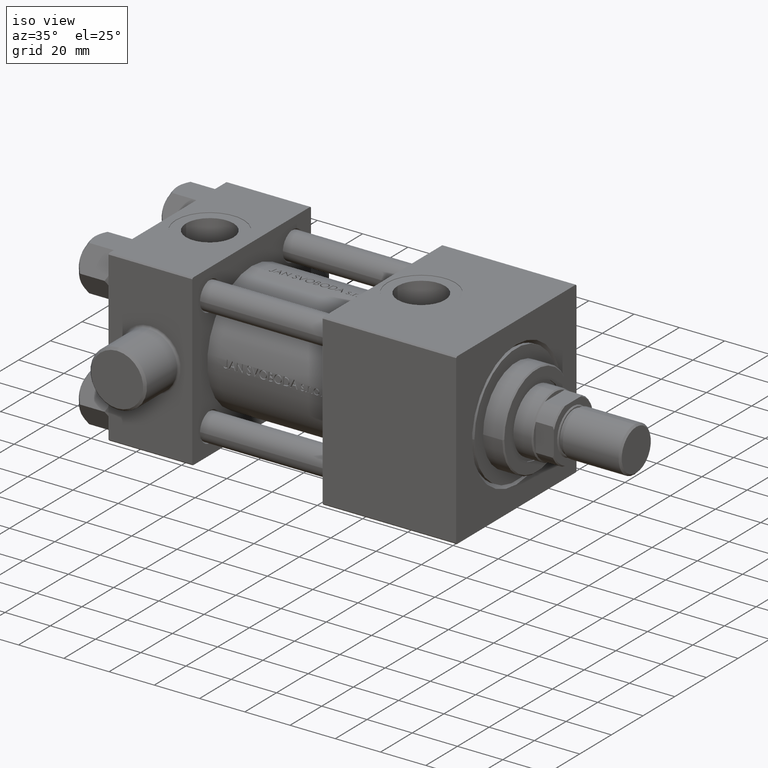
[diagram: clean part render]
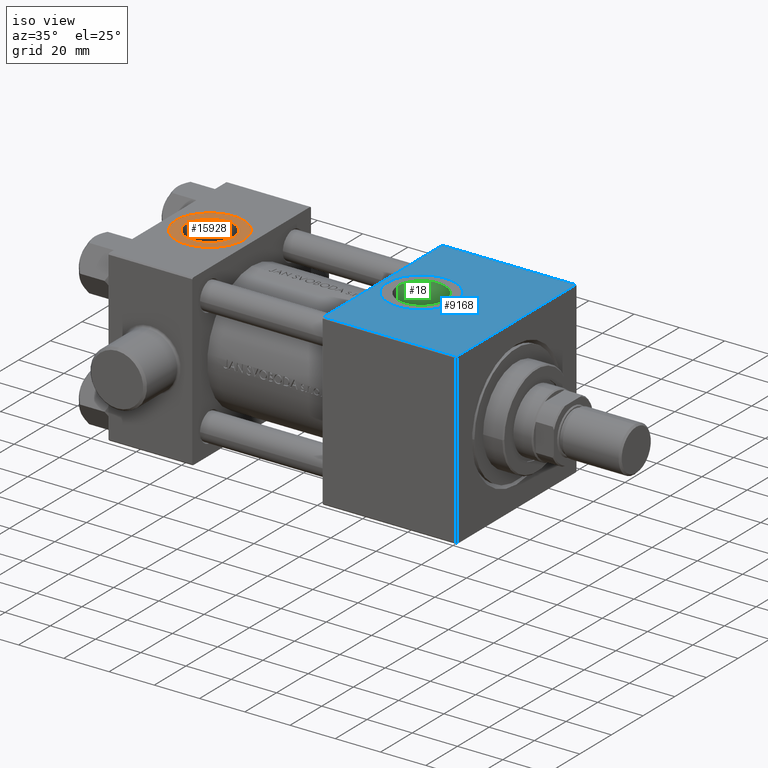
[diagram: same view with three faces highlighted in distinct colors, each labeled with its STEP entity id]
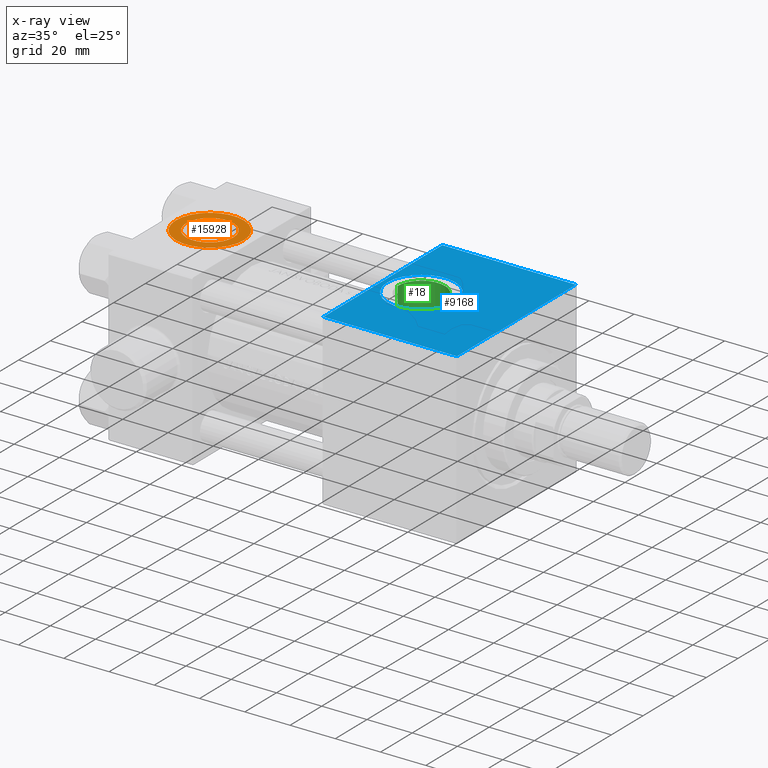
[diagram: x-ray of the same camera — body ghosted, the three highlighted faces saturated]
A machine part, iso view with three faces highlighted in distinct colors.
The next image is the same camera in x-ray (body ghosted, the three faces saturated) — at least one of them is partly hidden behind the body in this view.
Their STEP definitions:

[orange] entity #15928 — the highlighted planar face has unit normal (0, 0, 1).
#1451 = DIRECTION ( 'NONE',  ( 1.000000000000000000, 0.000000000000000000, 0.000000000000000000 ) ) ;
#2973 = DIRECTION ( 'NONE',  ( 1.000000000000000000, 0.000000000000000000, 0.000000000000000000 ) ) ;
#7587 = DIRECTION ( 'NONE',  ( 0.000000000000000000, 0.000000000000000000, 1.000000000000000000 ) ) ;
#8303 = CARTESIAN_POINT ( 'NONE',  ( 33.50000000000000000, -5.204170427930421283E-15, 37.29999999999999716 ) ) ;
#9035 = CIRCLE ( 'NONE', #36716, 10.48000000000000043 ) ;
#9059 = ORIENTED_EDGE ( 'NONE', *, *, #12402, .T. ) ;
#11553 = DIRECTION ( 'NONE',  ( 1.000000000000000000, 0.000000000000000000, 0.000000000000000000 ) ) ;
#11930 = DIRECTION ( 'NONE',  ( 0.000000000000000000, 0.000000000000000000, 1.000000000000000000 ) ) ;
#12027 = ORIENTED_EDGE ( 'NONE', *, *, #25923, .T. ) ;
#12293 = DIRECTION ( 'NONE',  ( 1.000000000000000000, 0.000000000000000000, -0.000000000000000000 ) ) ;
#12402 = EDGE_CURVE ( 'NONE', #48339, #20630, #39798, .T. ) ;
#15928 = ADVANCED_FACE ( 'NONE', ( #30374, #23916 ), #38054, .T. ) ;
#16015 = CARTESIAN_POINT ( 'NONE',  ( 28.98000000000000043, -5.204170427930421283E-15, 37.29999999999999716 ) ) ;
#16419 = ORIENTED_EDGE ( 'NONE', *, *, #21841, .F. ) ;
#17093 = AXIS2_PLACEMENT_3D ( 'NONE', #46548, #30696, #1451 ) ;
#17987 = EDGE_LOOP ( 'NONE', ( #9059, #12027 ) ) ;
#18144 = EDGE_CURVE ( 'NONE', #41883, #32398, #20909, .T. ) ;
#18423 = AXIS2_PLACEMENT_3D ( 'NONE', #48462, #7587, #11553 ) ;
#20630 = VERTEX_POINT ( 'NONE', #37704 ) ;
#20909 = CIRCLE ( 'NONE', #28819, 10.48000000000000043 ) ;
#21030 = CARTESIAN_POINT ( 'NONE',  ( 8.019999999999999574, -3.920740582423995006E-15, 37.29999999999999716 ) ) ;
#21324 = CARTESIAN_POINT ( 'NONE',  ( 18.50000000000000000, -5.204170427930421283E-15, 37.29999999999999716 ) ) ;
#21841 = EDGE_CURVE ( 'NONE', #32398, #41883, #9035, .T. ) ;
#22926 = DIRECTION ( 'NONE',  ( 0.000000000000000000, 0.000000000000000000, 1.000000000000000000 ) ) ;
#23916 = FACE_OUTER_BOUND ( 'NONE', #17987, .T. ) ;
#25923 = EDGE_CURVE ( 'NONE', #20630, #48339, #37658, .T. ) ;
#26894 = CARTESIAN_POINT ( 'NONE',  ( 18.50000000000000000, -5.204170427930421283E-15, 37.29999999999999716 ) ) ;
#28819 = AXIS2_PLACEMENT_3D ( 'NONE', #45861, #11930, #35216 ) ;
#30374 = FACE_BOUND ( 'NONE', #31650, .T. ) ;
#30696 = DIRECTION ( 'NONE',  ( 0.000000000000000000, 0.000000000000000000, 1.000000000000000000 ) ) ;
#31650 = EDGE_LOOP ( 'NONE', ( #43903, #16419 ) ) ;
#32398 = VERTEX_POINT ( 'NONE', #21030 ) ;
#35216 = DIRECTION ( 'NONE',  ( 1.000000000000000000, 0.000000000000000000, 0.000000000000000000 ) ) ;
#35877 = AXIS2_PLACEMENT_3D ( 'NONE', #26894, #22926, #12293 ) ;
#36716 = AXIS2_PLACEMENT_3D ( 'NONE', #21324, #44603, #2973 ) ;
#37658 = CIRCLE ( 'NONE', #17093, 15.00000000000000355 ) ;
#37704 = CARTESIAN_POINT ( 'NONE',  ( 3.499999999999997780, -3.367200229209391300E-15, 37.29999999999999716 ) ) ;
#38054 = PLANE ( 'NONE',  #35877 ) ;
#39798 = CIRCLE ( 'NONE', #18423, 15.00000000000000355 ) ;
#41883 = VERTEX_POINT ( 'NONE', #16015 ) ;
#43903 = ORIENTED_EDGE ( 'NONE', *, *, #18144, .F. ) ;
#44603 = DIRECTION ( 'NONE',  ( 0.000000000000000000, 0.000000000000000000, 1.000000000000000000 ) ) ;
#45861 = CARTESIAN_POINT ( 'NONE',  ( 18.50000000000000000, -5.204170427930421283E-15, 37.29999999999999716 ) ) ;
#46548 = CARTESIAN_POINT ( 'NONE',  ( 18.50000000000000000, -5.204170427930421283E-15, 37.29999999999999716 ) ) ;
#48339 = VERTEX_POINT ( 'NONE', #8303 ) ;
#48462 = CARTESIAN_POINT ( 'NONE',  ( 18.50000000000000000, -5.204170427930421283E-15, 37.29999999999999716 ) ) ;

[blue] entity #9168 — the highlighted planar face has unit normal (0, 0, -1).
#872 = VECTOR ( 'NONE', #15465, 1000.000000000000000 ) ;
#2477 = CARTESIAN_POINT ( 'NONE',  ( 154.0000000000000000, -37.50000000000002842, 37.50000000000000000 ) ) ;
#2915 = CARTESIAN_POINT ( 'NONE',  ( 154.0000000000000000, 38.00000000000000000, 37.50000000000000711 ) ) ;
#4170 = EDGE_CURVE ( 'NONE', #9858, #41956, #15704, .T. ) ;
#4310 = VECTOR ( 'NONE', #36431, 1000.000000000000000 ) ;
#4967 = AXIS2_PLACEMENT_3D ( 'NONE', #26327, #11720, #8004 ) ;
#5357 = VERTEX_POINT ( 'NONE', #37228 ) ;
#6083 = CIRCLE ( 'NONE', #33778, 15.00000000000000000 ) ;
#6155 = DIRECTION ( 'NONE',  ( 0.000000000000000000, -1.000000000000000000, -9.130123557772669567E-17 ) ) ;
#8004 = DIRECTION ( 'NONE',  ( 0.000000000000000000, 1.000000000000000000, 9.130123557772669567E-17 ) ) ;
#8453 = DIRECTION ( 'NONE',  ( 0.000000000000000000, 0.000000000000000000, 1.000000000000000000 ) ) ;
#9131 = ORIENTED_EDGE ( 'NONE', *, *, #28606, .F. ) ;
#9168 = ADVANCED_FACE ( 'NONE', ( #18904, #41464 ), #14939, .F. ) ;
#9342 = ORIENTED_EDGE ( 'NONE', *, *, #38925, .F. ) ;
#9453 = CARTESIAN_POINT ( 'NONE',  ( 154.0000000000000000, -37.50000000000002842, 37.50000000000000000 ) ) ;
#9858 = VERTEX_POINT ( 'NONE', #10004 ) ;
#10004 = CARTESIAN_POINT ( 'NONE',  ( 154.0000000000000000, 37.50000000000002842, 37.50000000000000711 ) ) ;
#11720 = DIRECTION ( 'NONE',  ( 0.000000000000000000, 9.130123557772669567E-17, -1.000000000000000000 ) ) ;
#11741 = VECTOR ( 'NONE', #24690, 1000.000000000000000 ) ;
#12170 = CARTESIAN_POINT ( 'NONE',  ( 112.0000000000000000, -3.423796334164751322E-15, 37.50000000000000711 ) ) ;
#12556 = VECTOR ( 'NONE', #6155, 1000.000000000000000 ) ;
#12913 = LINE ( 'NONE', #9453, #4310 ) ;
#13309 = LINE ( 'NONE', #40309, #11741 ) ;
#13437 = AXIS2_PLACEMENT_3D ( 'NONE', #12170, #8453, #38677 ) ;
#13683 = VERTEX_POINT ( 'NONE', #13937 ) ;
#13937 = CARTESIAN_POINT ( 'NONE',  ( 96.99999999999998579, -1.586826135443720747E-15, 37.50000000000000711 ) ) ;
#14939 = PLANE ( 'NONE',  #4967 ) ;
#15465 = DIRECTION ( 'NONE',  ( -1.000000000000000000, 0.000000000000000000, 0.000000000000000000 ) ) ;
#15704 = LINE ( 'NONE', #18694, #872 ) ;
#16522 = EDGE_LOOP ( 'NONE', ( #47702, #24390, #37801, #19081 ) ) ;
#16616 = CIRCLE ( 'NONE', #13437, 15.00000000000000000 ) ;
#18201 = EDGE_CURVE ( 'NONE', #5357, #35258, #12913, .T. ) ;
#18694 = CARTESIAN_POINT ( 'NONE',  ( 95.00000000000000000, 37.50000000000002842, 37.50000000000000711 ) ) ;
#18904 = FACE_BOUND ( 'NONE', #26030, .T. ) ;
#19081 = ORIENTED_EDGE ( 'NONE', *, *, #4170, .T. ) ;
#19833 = DIRECTION ( 'NONE',  ( 0.000000000000000000, 0.000000000000000000, 1.000000000000000000 ) ) ;
#24390 = ORIENTED_EDGE ( 'NONE', *, *, #18201, .T. ) ;
#24690 = DIRECTION ( 'NONE',  ( 0.000000000000000000, -1.000000000000000000, -9.130123557772669567E-17 ) ) ;
#26030 = EDGE_LOOP ( 'NONE', ( #9342, #9131 ) ) ;
#26327 = CARTESIAN_POINT ( 'NONE',  ( 154.0000000000000000, 38.00000000000000000, 37.50000000000000711 ) ) ;
#27005 = CARTESIAN_POINT ( 'NONE',  ( 127.0000000000000000, -3.423796334164751322E-15, 37.50000000000000711 ) ) ;
#27561 = VERTEX_POINT ( 'NONE', #27005 ) ;
#28606 = EDGE_CURVE ( 'NONE', #13683, #27561, #6083, .T. ) ;
#29423 = LINE ( 'NONE', #2915, #12556 ) ;
#32437 = EDGE_CURVE ( 'NONE', #9858, #35258, #29423, .T. ) ;
#33778 = AXIS2_PLACEMENT_3D ( 'NONE', #38175, #19833, #34693 ) ;
#33934 = EDGE_CURVE ( 'NONE', #41956, #5357, #13309, .T. ) ;
#34693 = DIRECTION ( 'NONE',  ( 1.000000000000000000, 0.000000000000000000, 0.000000000000000000 ) ) ;
#34848 = CARTESIAN_POINT ( 'NONE',  ( 95.00000000000000000, 37.50000000000002842, 37.50000000000000711 ) ) ;
#35258 = VERTEX_POINT ( 'NONE', #2477 ) ;
#36431 = DIRECTION ( 'NONE',  ( 1.000000000000000000, 0.000000000000000000, 0.000000000000000000 ) ) ;
#37228 = CARTESIAN_POINT ( 'NONE',  ( 95.00000000000000000, -37.50000000000002842, 37.50000000000000000 ) ) ;
#37801 = ORIENTED_EDGE ( 'NONE', *, *, #32437, .F. ) ;
#38175 = CARTESIAN_POINT ( 'NONE',  ( 112.0000000000000000, -3.423796334164751322E-15, 37.50000000000000711 ) ) ;
#38677 = DIRECTION ( 'NONE',  ( 1.000000000000000000, 0.000000000000000000, 0.000000000000000000 ) ) ;
#38925 = EDGE_CURVE ( 'NONE', #27561, #13683, #16616, .T. ) ;
#40309 = CARTESIAN_POINT ( 'NONE',  ( 95.00000000000000000, 38.00000000000000000, 37.50000000000000711 ) ) ;
#41464 = FACE_OUTER_BOUND ( 'NONE', #16522, .T. ) ;
#41956 = VERTEX_POINT ( 'NONE', #34848 ) ;
#47702 = ORIENTED_EDGE ( 'NONE', *, *, #33934, .T. ) ;

[green] entity #18 — the highlighted cylindrical surface (edge-blend (fillet) strip) has radius 10.48 mm, axis along (0, 0, 1).
#18 = ADVANCED_FACE ( 'NONE', ( #44125 ), #26254, .F. ) ;
#24 = CARTESIAN_POINT ( 'NONE',  ( 101.5200000000000102, 0.6967823640873053170, 20.49999999999999645 ) ) ;
#1514 = AXIS2_PLACEMENT_3D ( 'NONE', #18344, #37178, #18103 ) ;
#2054 = CARTESIAN_POINT ( 'NONE',  ( 121.0718566577812396, 5.291159677655635996, 19.81417435353765200 ) ) ;
#3506 = CARTESIAN_POINT ( 'NONE',  ( 107.3143824369412300, 9.399358022566024928, 18.22067190218962907 ) ) ;
#3837 = CIRCLE ( 'NONE', #14136, 10.48000000000000398 ) ;
#4411 = EDGE_CURVE ( 'NONE', #20203, #29546, #33361, .T. ) ;
#6026 = CARTESIAN_POINT ( 'NONE',  ( 119.1638061275311173, 7.656566108217146116, 19.01819379702215684 ) ) ;
#6223 = ORIENTED_EDGE ( 'NONE', *, *, #14460, .T. ) ;
#6263 = CARTESIAN_POINT ( 'NONE',  ( 115.4172955847990210, 9.913257743980494752, 17.94410793545390703 ) ) ;
#7477 = CARTESIAN_POINT ( 'NONE',  ( 103.6866561539506222, 6.417723730979735031, 19.47855006749640694 ) ) ;
#9511 = CARTESIAN_POINT ( 'NONE',  ( 122.2036093302260014, 2.415912636154257775, 20.36000321358037368 ) ) ;
#9853 = ORIENTED_EDGE ( 'NONE', *, *, #32155, .T. ) ;
#10679 = ORIENTED_EDGE ( 'NONE', *, *, #40039, .F. ) ;
#11192 = CARTESIAN_POINT ( 'NONE',  ( 113.3972957807850577, 10.40949522351232837, 17.66118746953339880 ) ) ;
#11374 = DIRECTION ( 'NONE',  ( -0.000000000000000000, -0.000000000000000000, 1.000000000000000000 ) ) ;
#11444 = CARTESIAN_POINT ( 'NONE',  ( 108.2653329998981775, 9.797999703728091703, 18.00755135371405302 ) ) ;
#11685 = CARTESIAN_POINT ( 'NONE',  ( 105.8741008516525000, 8.509911541881288954, 18.65140651454457199 ) ) ;
#11749 = LINE ( 'NONE', #19175, #47770 ) ;
#13702 = CARTESIAN_POINT ( 'NONE',  ( 115.7394704517087689, 9.796046444661119068, 18.00860180445792125 ) ) ;
#14136 = AXIS2_PLACEMENT_3D ( 'NONE', #28317, #46919, #35767 ) ;
#14423 = CARTESIAN_POINT ( 'NONE',  ( 101.5888000338872530, 1.387573566795228697, 20.46456553337858608 ) ) ;
#14460 = EDGE_CURVE ( 'NONE', #20203, #24394, #11749, .T. ) ;
#15150 = CARTESIAN_POINT ( 'NONE',  ( 101.5199999999999960, 2.510525976792046767E-15, 20.50000000000000000 ) ) ;
#16966 = CARTESIAN_POINT ( 'NONE',  ( 122.4800000000000040, -3.748308703608416821E-15, 20.50000000000000000 ) ) ;
#17175 = CARTESIAN_POINT ( 'NONE',  ( 120.5005384750003969, 6.139005141183933034, 19.56143105420016681 ) ) ;
#17416 = CARTESIAN_POINT ( 'NONE',  ( 118.1195262949234035, 8.514500867498462355, 18.64931045191755032 ) ) ;
#17661 = CARTESIAN_POINT ( 'NONE',  ( 122.4094207927715132, 1.397808168755530600, 20.46366514614362941 ) ) ;
#18103 = DIRECTION ( 'NONE',  ( 1.000000000000000000, 0.000000000000000000, 0.000000000000000000 ) ) ;
#18344 = CARTESIAN_POINT ( 'NONE',  ( 112.0000000000000000, -3.423796334164751322E-15, -29.64191626734007912 ) ) ;
#18388 = CARTESIAN_POINT ( 'NONE',  ( 114.4155333511632620, 10.20370056431730177, 17.78034809007779060 ) ) ;
#18634 = CARTESIAN_POINT ( 'NONE',  ( 102.9225563679261768, 5.281939122741831305, 19.81671541206548071 ) ) ;
#18928 = CARTESIAN_POINT ( 'NONE',  ( 122.4800000000000040, -3.423796334164751322E-15, 37.30000000000000426 ) ) ;
#19116 = CARTESIAN_POINT ( 'NONE',  ( 102.5995025140081367, 4.682576587287047509, 19.96836060444810101 ) ) ;
#19175 = CARTESIAN_POINT ( 'NONE',  ( 122.4800000000000040, -3.423796334164751322E-15, -29.64191626734007912 ) ) ;
#20203 = VERTEX_POINT ( 'NONE', #16966 ) ;
#20894 = CARTESIAN_POINT ( 'NONE',  ( 121.7944253755054262, 3.743983501781744216, 20.15779689679483866 ) ) ;
#21132 = CARTESIAN_POINT ( 'NONE',  ( 118.9148223769584547, 7.882226429758174113, 18.92550904926250865 ) ) ;
#22332 = CARTESIAN_POINT ( 'NONE',  ( 104.1158008868667793, 6.936938536499981822, 19.29736706481581621 ) ) ;
#22814 = CARTESIAN_POINT ( 'NONE',  ( 108.5926450932739300, 9.916634395335906405, 17.94223718521384825 ) ) ;
#23064 = CARTESIAN_POINT ( 'NONE',  ( 105.0776452418840137, 7.875654497479074756, 18.92825589621287818 ) ) ;
#24394 = VERTEX_POINT ( 'NONE', #18928 ) ;
#24600 = CARTESIAN_POINT ( 'NONE',  ( 122.1182143621888088, 2.751972056903264185, 20.31723222319772049 ) ) ;
#24851 = CARTESIAN_POINT ( 'NONE',  ( 120.2958033306398988, 6.412812401408079843, 19.47310258086861978 ) ) ;
#26056 = CARTESIAN_POINT ( 'NONE',  ( 104.8284845884555381, 7.649352566110282581, 19.02110086963148916 ) ) ;
#26254 = CYLINDRICAL_SURFACE ( 'NONE', #1514, 10.48000000000000398 ) ;
#26294 = CARTESIAN_POINT ( 'NONE',  ( 111.3076056654027752, 10.46297416512450695, 17.62889126461534062 ) ) ;
#26542 = CARTESIAN_POINT ( 'NONE',  ( 101.8828930166379934, 2.755736371050361733, 20.31668327404119267 ) ) ;
#26781 = CARTESIAN_POINT ( 'NONE',  ( 102.0865202055852734, 3.416556018164093267, 20.21605419410972715 ) ) ;
#28264 = ORIENTED_EDGE ( 'NONE', *, *, #4411, .F. ) ;
#28317 = CARTESIAN_POINT ( 'NONE',  ( 112.0000000000000000, -3.423796334164751322E-15, 37.30000000000000426 ) ) ;
#29546 = VERTEX_POINT ( 'NONE', #31381 ) ;
#30254 = CARTESIAN_POINT ( 'NONE',  ( 110.6101074716386705, 10.39333618499134992, 17.67003674431503413 ) ) ;
#30506 = CARTESIAN_POINT ( 'NONE',  ( 112.7089960201327870, 10.47927568230745798, 17.61915951098716704 ) ) ;
#30843 = CARTESIAN_POINT ( 'NONE',  ( 101.5199999999999960, -2.140366488658325833E-15, 37.30000000000000426 ) ) ;
#30970 = EDGE_LOOP ( 'NONE', ( #10679, #28264, #6223, #9853 ) ) ;
#31381 = CARTESIAN_POINT ( 'NONE',  ( 101.5199999999999960, 2.510525976792046767E-15, 20.50000000000000000 ) ) ;
#32155 = EDGE_CURVE ( 'NONE', #24394, #43140, #3837, .T. ) ;
#32292 = CARTESIAN_POINT ( 'NONE',  ( 119.8655926310704700, 6.933755718105408583, 19.29375335859578300 ) ) ;
#32464 = VECTOR ( 'NONE', #11374, 1000.000000000000000 ) ;
#32534 = CARTESIAN_POINT ( 'NONE',  ( 117.2749136096344245, 9.081045908839907810, 18.38365106881856903 ) ) ;
#32785 = CARTESIAN_POINT ( 'NONE',  ( 118.3934426630466135, 8.310725173485083772, 18.74129753657672737 ) ) ;
#33361 = B_SPLINE_CURVE_WITH_KNOTS ( 'NONE', 3,
 ( #47160, #43448, #17661, #9511, #24600, #39735, #20894, #36008, #2054, #17175, #24851, #32292, #47392, #6026, #21132, #32785, #17416, #32534, #47635, #13702, #6263, #45370, #18388, #11192, #30506, #37943, #26294, #30254, #41432, #45122, #45613, #22814, #11444, #3506, #48355, #11685, #37461, #23064, #26056, #22332, #7477, #18634, #19116, #37701, #26781, #26542, #41917, #14423, #24, #15150 ),
 .UNSPECIFIED., .F., .F.,
 ( 4, 2, 2, 2, 2, 2, 2, 2, 2, 2, 2, 2, 2, 2, 2, 2, 2, 2, 2, 2, 2, 2, 2, 2, 4 ),
 ( 4.866303884865788279E-19, 0.002085371848011713727, 0.003128057772017569724, 0.004170743696023425720, 0.006256115544035155060, 0.007298801468041020597, 0.008341487392046884400, 0.009384173316052749070, 0.01042685924005861374, 0.01251223108807037257, 0.01355491701207627367, 0.01459760293608217477, 0.01668297478409393533, 0.01772566070809983643, 0.01876834663210573753, 0.01981103255611164210, 0.02085371848011754320, 0.02293909032812938009, 0.02398177625213530201, 0.02502446217614122739, 0.02710983402415309898, 0.02919520587216496363, 0.03023789179617089942, 0.03128057772017683869, 0.03336594956818869639 ),
 .UNSPECIFIED. ) ;
#35767 = DIRECTION ( 'NONE',  ( 1.000000000000000000, 0.000000000000000000, 0.000000000000000000 ) ) ;
#36008 = CARTESIAN_POINT ( 'NONE',  ( 121.3955262495358625, 4.693145010131122952, 19.96599966668495085 ) ) ;
#37178 = DIRECTION ( 'NONE',  ( -0.000000000000000000, -0.000000000000000000, 1.000000000000000000 ) ) ;
#37395 = LINE ( 'NONE', #48532, #32464 ) ;
#37461 = CARTESIAN_POINT ( 'NONE',  ( 105.6001807580774994, 8.305855936120723371, 18.74346718738526008 ) ) ;
#37701 = CARTESIAN_POINT ( 'NONE',  ( 102.2036804305013931, 3.738835649269058869, 20.15872255796546852 ) ) ;
#37943 = CARTESIAN_POINT ( 'NONE',  ( 111.6616848209565802, 10.48035382919965386, 17.61851820641090427 ) ) ;
#39735 = CARTESIAN_POINT ( 'NONE',  ( 121.9132609391531616, 3.417436119877229395, 20.21594434548825703 ) ) ;
#40039 = EDGE_CURVE ( 'NONE', #29546, #43140, #37395, .T. ) ;
#41432 = CARTESIAN_POINT ( 'NONE',  ( 110.2662192767982816, 10.34138286985941235, 17.70062314295811490 ) ) ;
#41917 = CARTESIAN_POINT ( 'NONE',  ( 101.7960190050290663, 2.414784284089440902, 20.36018829921812667 ) ) ;
#43140 = VERTEX_POINT ( 'NONE', #30843 ) ;
#43448 = CARTESIAN_POINT ( 'NONE',  ( 122.4799999999999898, 0.7059292743811385051, 20.50000000000000711 ) ) ;
#44125 = FACE_OUTER_BOUND ( 'NONE', #30970, .T. ) ;
#45122 = CARTESIAN_POINT ( 'NONE',  ( 109.5876685271199307, 10.20445256356849484, 17.77991583748154625 ) ) ;
#45370 = CARTESIAN_POINT ( 'NONE',  ( 114.7546741466190952, 10.11742845580954153, 17.82978771997537493 ) ) ;
#45613 = CARTESIAN_POINT ( 'NONE',  ( 109.2530065807623885, 10.11947292826134337, 17.82862250975703944 ) ) ;
#46919 = DIRECTION ( 'NONE',  ( 0.000000000000000000, 0.000000000000000000, 1.000000000000000000 ) ) ;
#47160 = CARTESIAN_POINT ( 'NONE',  ( 122.4800000000000040, -3.748308703608416821E-15, 20.50000000000000000 ) ) ;
#47392 = CARTESIAN_POINT ( 'NONE',  ( 119.6391919336807774, 7.182330360178253770, 19.20231315409300876 ) ) ;
#47635 = CARTESIAN_POINT ( 'NONE',  ( 116.6807667189036692, 9.401270326070086725, 18.21963709424767686 ) ) ;
#47770 = VECTOR ( 'NONE', #48890, 1000.000000000000000 ) ;
#48355 = CARTESIAN_POINT ( 'NONE',  ( 106.7179426654414840, 9.076872237721250514, 18.38571804596834269 ) ) ;
#48532 = CARTESIAN_POINT ( 'NONE',  ( 101.5199999999999960, -2.140366488658325439E-15, -29.64191626734007912 ) ) ;
#48890 = DIRECTION ( 'NONE',  ( -0.000000000000000000, -0.000000000000000000, 1.000000000000000000 ) ) ;